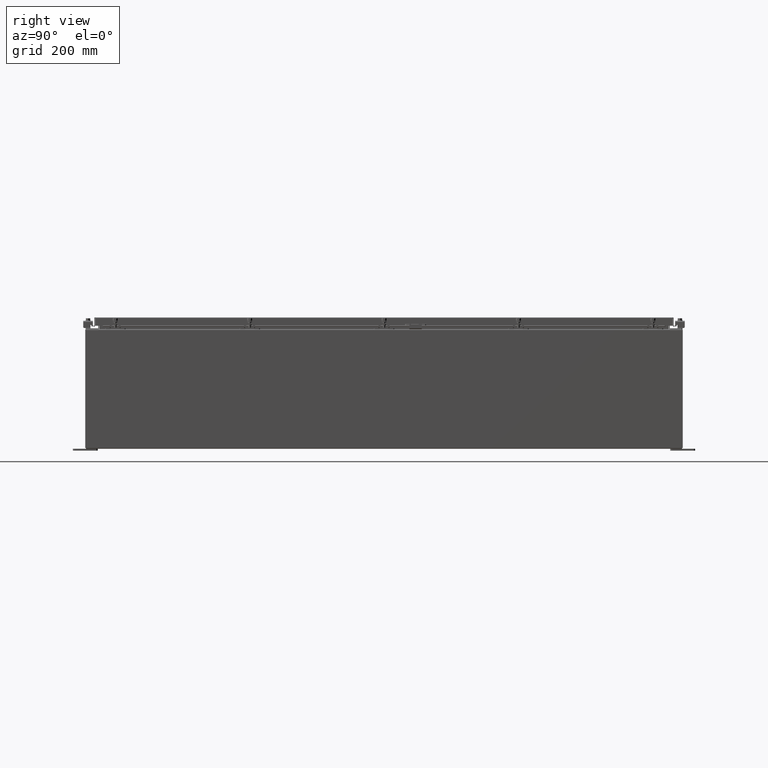
[diagram: clean part render]
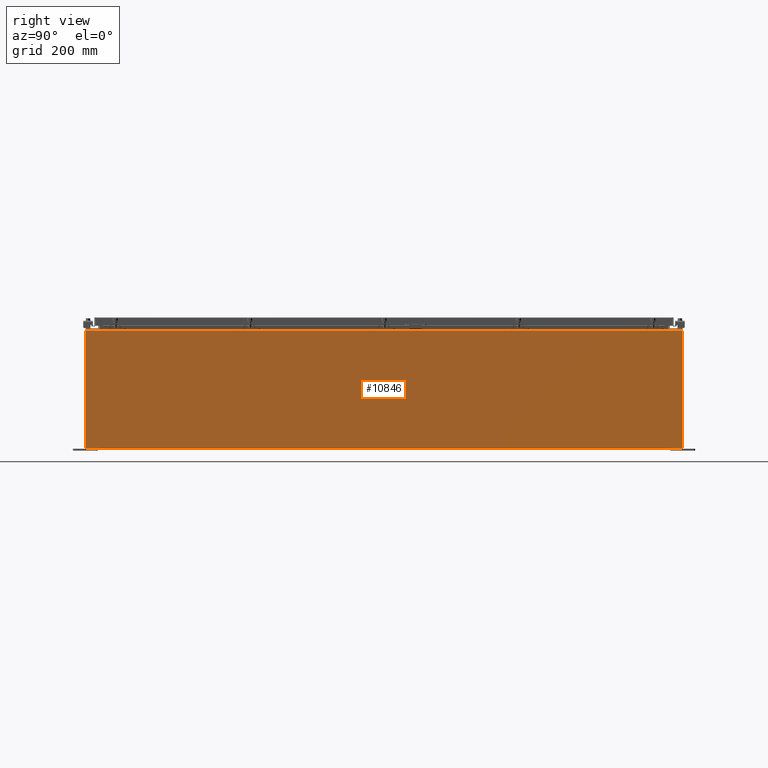
[diagram: same view with one face highlighted and labeled with its STEP entity id]
A machine part, right view. The second image highlights one B-rep face of the part: STEP entity #10846.
In plain terms, the highlighted planar face has unit normal (-1, 0, 0).
Its self-contained STEP definition (entity closure, byte-faithful):
#195 = ORIENTED_EDGE ( 'NONE', *, *, #42066, .T. ) ;
#1455 = VERTEX_POINT ( 'NONE', #30203 ) ;
#2501 = VECTOR ( 'NONE', #47856, 39.37007874015748100 ) ;
#4039 = LINE ( 'NONE', #42987, #2501 ) ;
#5602 = EDGE_CURVE ( 'NONE', #14385, #57465, #37692, .T. ) ;
#10846 = ADVANCED_FACE ( 'NONE', ( #30737 ), #59087, .F. ) ;
#13859 = CARTESIAN_POINT ( 'NONE',  ( 17.99999999999999600, 29.92529999999999300, 0.01299999999999984700 ) ) ;
#14385 = VERTEX_POINT ( 'NONE', #13859 ) ;
#20298 = EDGE_CURVE ( 'NONE', #14385, #46567, #4039, .T. ) ;
#25054 = CARTESIAN_POINT ( 'NONE',  ( 17.99999999999999600, 0.0000000000000000000, -6.293710784286996200E-014 ) ) ;
#25275 = DIRECTION ( 'NONE',  ( 3.482016343714355100E-015, 0.0000000000000000000, 1.000000000000000000 ) ) ;
#25521 = ORIENTED_EDGE ( 'NONE', *, *, #20298, .T. ) ;
#26425 = CARTESIAN_POINT ( 'NONE',  ( 17.99999999999999600, -29.92530000000001100, -6.293710784286996200E-014 ) ) ;
#27231 = DIRECTION ( 'NONE',  ( -0.0000000000000000000, -1.000000000000000000, -0.0000000000000000000 ) ) ;
#30203 = CARTESIAN_POINT ( 'NONE',  ( 18.00000000000003900, -29.92530000000001100, 11.83760000000000200 ) ) ;
#30444 = CARTESIAN_POINT ( 'NONE',  ( 17.99999999999999600, -29.92530000000001100, 0.01299999999999984700 ) ) ;
#30737 = FACE_OUTER_BOUND ( 'NONE', #31842, .T. ) ;
#30772 = AXIS2_PLACEMENT_3D ( 'NONE', #25054, #54378, #25275 ) ;
#31842 = EDGE_LOOP ( 'NONE', ( #195, #39442, #59713, #25521 ) ) ;
#32725 = LINE ( 'NONE', #26425, #45645 ) ;
#34621 = CARTESIAN_POINT ( 'NONE',  ( 18.00000000000003900, 29.92529999999999300, 11.83760000000000200 ) ) ;
#36189 = VECTOR ( 'NONE', #59799, 39.37007874015748100 ) ;
#37107 = EDGE_CURVE ( 'NONE', #1455, #57465, #32725, .T. ) ;
#37692 = LINE ( 'NONE', #30444, #36189 ) ;
#39442 = ORIENTED_EDGE ( 'NONE', *, *, #37107, .T. ) ;
#41149 = CARTESIAN_POINT ( 'NONE',  ( 17.99999999999999600, -29.92530000000001100, 0.01299999999999984700 ) ) ;
#42066 = EDGE_CURVE ( 'NONE', #46567, #1455, #55669, .T. ) ;
#42987 = CARTESIAN_POINT ( 'NONE',  ( 17.99999999999999600, 29.92529999999998900, -6.293710784286996200E-014 ) ) ;
#45645 = VECTOR ( 'NONE', #60491, 39.37007874015748100 ) ;
#46567 = VERTEX_POINT ( 'NONE', #34621 ) ;
#47856 = DIRECTION ( 'NONE',  ( 3.482016343714355500E-015, 0.0000000000000000000, 1.000000000000000000 ) ) ;
#54378 = DIRECTION ( 'NONE',  ( -1.000000000000000000, 0.0000000000000000000, 3.482016343714355100E-015 ) ) ;
#55669 = LINE ( 'NONE', #61282, #57209 ) ;
#57209 = VECTOR ( 'NONE', #27231, 39.37007874015748100 ) ;
#57465 = VERTEX_POINT ( 'NONE', #41149 ) ;
#59087 = PLANE ( 'NONE',  #30772 ) ;
#59713 = ORIENTED_EDGE ( 'NONE', *, *, #5602, .F. ) ;
#59799 = DIRECTION ( 'NONE',  ( -0.0000000000000000000, -1.000000000000000000, -0.0000000000000000000 ) ) ;
#60491 = DIRECTION ( 'NONE',  ( -3.482016343714355500E-015, 0.0000000000000000000, -1.000000000000000000 ) ) ;
#61282 = CARTESIAN_POINT ( 'NONE',  ( 18.00000000000003900, 29.92529999999999300, 11.83760000000000200 ) ) ;